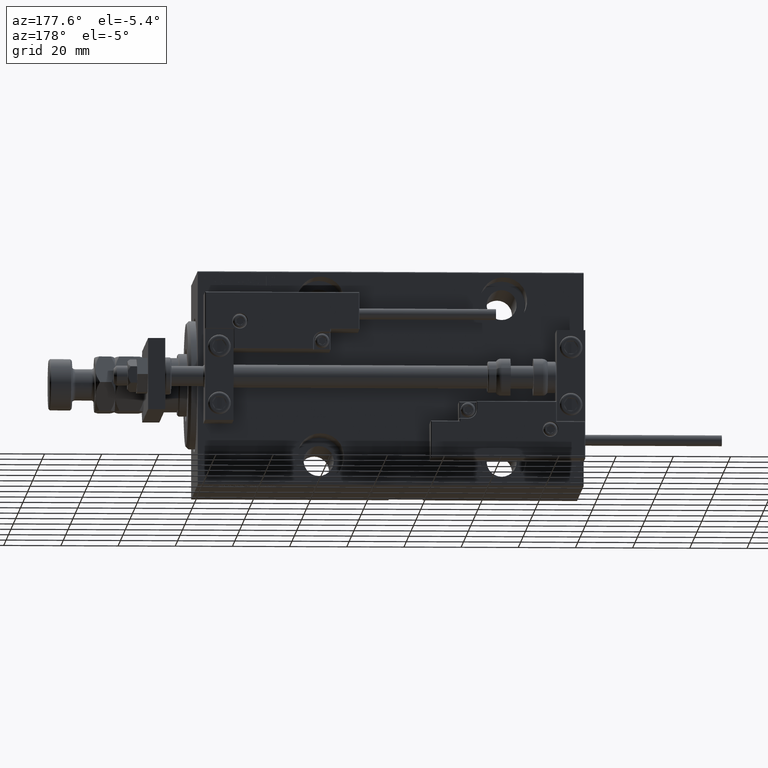
[diagram: clean part render]
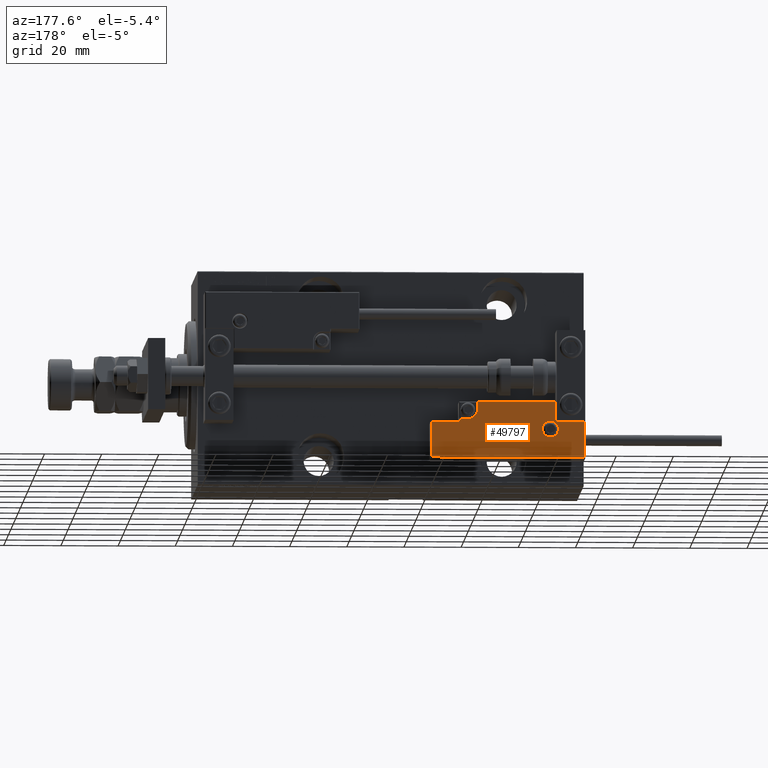
[diagram: same view with one face highlighted and labeled with its STEP entity id]
A machine part, auxiliary view. The second image highlights one B-rep face of the part: STEP entity #49797.
In plain terms, the highlighted planar face has unit normal (-0, 1, 0).
Its self-contained STEP definition (entity closure, byte-faithful):
#365 = ORIENTED_EDGE ( 'NONE', *, *, #28332, .T. ) ;
#688 = LINE ( 'NONE', #16537, #7807 ) ;
#1415 = VERTEX_POINT ( 'NONE', #22199 ) ;
#1532 = CARTESIAN_POINT ( 'NONE',  ( 26.70000000000006324, 7.300000000000007816, 14.00000000000000000 ) ) ;
#1819 = CIRCLE ( 'NONE', #24242, 2.800000000000000266 ) ;
#2932 = DIRECTION ( 'NONE',  ( 1.000000000000000000, -1.734723475976796001E-16, 0.000000000000000000 ) ) ;
#3218 = DIRECTION ( 'NONE',  ( 0.000000000000000000, -0.000000000000000000, -1.000000000000000000 ) ) ;
#3383 = DIRECTION ( 'NONE',  ( -0.000000000000000000, 1.000000000000000000, -0.000000000000000000 ) ) ;
#3527 = CIRCLE ( 'NONE', #42581, 3.299999999999997158 ) ;
#3640 = CARTESIAN_POINT ( 'NONE',  ( -26.69999999999993534, 19.70000000000002061, 14.00000000000000000 ) ) ;
#4215 = DIRECTION ( 'NONE',  ( -0.000000000000000000, 0.000000000000000000, 1.000000000000000000 ) ) ;
#7038 = ORIENTED_EDGE ( 'NONE', *, *, #10495, .T. ) ;
#7807 = VECTOR ( 'NONE', #29541, 1000.000000000000000 ) ;
#8621 = CARTESIAN_POINT ( 'NONE',  ( 0.000000000000000000, 0.000000000000000000, 14.00000000000000000 ) ) ;
#9066 = VERTEX_POINT ( 'NONE', #44099 ) ;
#10090 = VECTOR ( 'NONE', #2932, 1000.000000000000000 ) ;
#10129 = VERTEX_POINT ( 'NONE', #19850 ) ;
#10495 = EDGE_CURVE ( 'NONE', #12157, #18981, #46865, .T. ) ;
#10637 = VERTEX_POINT ( 'NONE', #24840 ) ;
#11281 = CARTESIAN_POINT ( 'NONE',  ( 17.00000000000000000, 6.300000000000003375, 14.00000000000000000 ) ) ;
#12157 = VERTEX_POINT ( 'NONE', #47923 ) ;
#12457 = AXIS2_PLACEMENT_3D ( 'NONE', #31638, #47518, #32645 ) ;
#12661 = VERTEX_POINT ( 'NONE', #21530 ) ;
#13503 = CARTESIAN_POINT ( 'NONE',  ( -16.69999999999999218, 3.252606517456513302E-15, 14.00000000000000000 ) ) ;
#13658 = AXIS2_PLACEMENT_3D ( 'NONE', #8621, #4215, #31532 ) ;
#14174 = DIRECTION ( 'NONE',  ( -8.006416042969869188E-16, -1.000000000000000000, 0.000000000000000000 ) ) ;
#14877 = CARTESIAN_POINT ( 'NONE',  ( 16.69999999999999929, 6.300000000000003375, 14.00000000000000000 ) ) ;
#15370 = CARTESIAN_POINT ( 'NONE',  ( 11.00000000000000000, 0.3000000000000032085, 14.00000000000000000 ) ) ;
#15411 = LINE ( 'NONE', #20338, #20321 ) ;
#15864 = ORIENTED_EDGE ( 'NONE', *, *, #29902, .T. ) ;
#15967 = DIRECTION ( 'NONE',  ( 0.000000000000000000, -0.000000000000000000, -1.000000000000000000 ) ) ;
#16537 = CARTESIAN_POINT ( 'NONE',  ( 26.70000000000006324, 20.00000000000001776, 14.00000000000000000 ) ) ;
#17019 = VECTOR ( 'NONE', #31247, 1000.000000000000000 ) ;
#17387 = EDGE_CURVE ( 'NONE', #42183, #20395, #45524, .T. ) ;
#18347 = LINE ( 'NONE', #21984, #20140 ) ;
#18981 = VERTEX_POINT ( 'NONE', #46704 ) ;
#19576 = CARTESIAN_POINT ( 'NONE',  ( -11.99999999999994849, 9.800000000000004263, 14.00000000000000000 ) ) ;
#19850 = CARTESIAN_POINT ( 'NONE',  ( 10.69999999999999929, 3.000000000000003109, 14.00000000000000000 ) ) ;
#20140 = VECTOR ( 'NONE', #14174, 1000.000000000000000 ) ;
#20152 = EDGE_LOOP ( 'NONE', ( #47547, #15864 ) ) ;
#20321 = VECTOR ( 'NONE', #35699, 1000.000000000000000 ) ;
#20338 = CARTESIAN_POINT ( 'NONE',  ( -26.99999999999993605, 19.70000000000002061, 14.00000000000000000 ) ) ;
#20395 = VERTEX_POINT ( 'NONE', #50919 ) ;
#21530 = CARTESIAN_POINT ( 'NONE',  ( -17.59999999999994813, 9.800000000000004263, 14.00000000000000000 ) ) ;
#21733 = CARTESIAN_POINT ( 'NONE',  ( 13.99999999999999822, 3.000000000000002665, 14.00000000000000000 ) ) ;
#21984 = CARTESIAN_POINT ( 'NONE',  ( -26.69999999999994600, 7.000000000000005329, 14.00000000000000000 ) ) ;
#22199 = CARTESIAN_POINT ( 'NONE',  ( 26.70000000000006324, 19.70000000000001705, 14.00000000000000000 ) ) ;
#22327 = LINE ( 'NONE', #25721, #27640 ) ;
#24115 = CIRCLE ( 'NONE', #12457, 2.800000000000000266 ) ;
#24242 = AXIS2_PLACEMENT_3D ( 'NONE', #27688, #15967, #43577 ) ;
#24840 = CARTESIAN_POINT ( 'NONE',  ( -26.69999999999994600, 7.300000000000005151, 14.00000000000000000 ) ) ;
#25721 = CARTESIAN_POINT ( 'NONE',  ( -16.99999999999999289, 7.300000000000003375, 14.00000000000000000 ) ) ;
#25990 = EDGE_LOOP ( 'NONE', ( #365, #7038, #32080, #49524, #51263, #28027, #44684, #37754, #29170, #34188, #32748 ) ) ;
#27640 = VECTOR ( 'NONE', #41596, 1000.000000000000000 ) ;
#27688 = CARTESIAN_POINT ( 'NONE',  ( -14.79999999999994920, 9.800000000000004263, 14.00000000000000000 ) ) ;
#28027 = ORIENTED_EDGE ( 'NONE', *, *, #17387, .T. ) ;
#28135 = FACE_BOUND ( 'NONE', #20152, .T. ) ;
#28332 = EDGE_CURVE ( 'NONE', #9066, #12157, #49166, .T. ) ;
#29170 = ORIENTED_EDGE ( 'NONE', *, *, #49823, .T. ) ;
#29541 = DIRECTION ( 'NONE',  ( 0.000000000000000000, 1.000000000000000000, -0.000000000000000000 ) ) ;
#29901 = CARTESIAN_POINT ( 'NONE',  ( 16.69999999999999929, 7.000000000000009770, 14.00000000000000000 ) ) ;
#29902 = EDGE_CURVE ( 'NONE', #12661, #43267, #24115, .T. ) ;
#30469 = EDGE_CURVE ( 'NONE', #18981, #10129, #51248, .T. ) ;
#30949 = CARTESIAN_POINT ( 'NONE',  ( 10.69999999999999929, 3.000000000000003109, 14.00000000000000000 ) ) ;
#31247 = DIRECTION ( 'NONE',  ( 1.000000000000000000, -0.000000000000000000, 0.000000000000000000 ) ) ;
#31532 = DIRECTION ( 'NONE',  ( 1.000000000000000000, 0.000000000000000000, 0.000000000000000000 ) ) ;
#31638 = CARTESIAN_POINT ( 'NONE',  ( -14.79999999999994920, 9.800000000000004263, 14.00000000000000000 ) ) ;
#31645 = CARTESIAN_POINT ( 'NONE',  ( 13.99999999999999822, 6.300000000000001599, 14.00000000000000000 ) ) ;
#32080 = ORIENTED_EDGE ( 'NONE', *, *, #30469, .T. ) ;
#32645 = DIRECTION ( 'NONE',  ( 1.000000000000000000, 0.000000000000000000, 0.000000000000000000 ) ) ;
#32748 = ORIENTED_EDGE ( 'NONE', *, *, #36077, .T. ) ;
#32782 = DIRECTION ( 'NONE',  ( 9.912705577010318647E-16, 1.000000000000000000, 0.000000000000000000 ) ) ;
#33754 = VERTEX_POINT ( 'NONE', #3640 ) ;
#34188 = ORIENTED_EDGE ( 'NONE', *, *, #44077, .T. ) ;
#34682 = EDGE_CURVE ( 'NONE', #10129, #42456, #3527, .T. ) ;
#34941 = DIRECTION ( 'NONE',  ( 1.000000000000000000, 0.000000000000000000, 0.000000000000000000 ) ) ;
#35699 = DIRECTION ( 'NONE',  ( -1.000000000000000000, 6.424901762877063495E-17, -0.000000000000000000 ) ) ;
#36077 = EDGE_CURVE ( 'NONE', #10637, #9066, #22327, .T. ) ;
#36549 = VECTOR ( 'NONE', #32782, 1000.000000000000000 ) ;
#37754 = ORIENTED_EDGE ( 'NONE', *, *, #47125, .T. ) ;
#38568 = LINE ( 'NONE', #50795, #10090 ) ;
#38881 = LINE ( 'NONE', #11281, #39984 ) ;
#39106 = VECTOR ( 'NONE', #3383, 1000.000000000000000 ) ;
#39984 = VECTOR ( 'NONE', #45889, 1000.000000000000000 ) ;
#40961 = EDGE_CURVE ( 'NONE', #42456, #42183, #38881, .T. ) ;
#41596 = DIRECTION ( 'NONE',  ( 1.000000000000000000, -1.734723475976815230E-16, 0.000000000000000000 ) ) ;
#41606 = DIRECTION ( 'NONE',  ( 0.000000000000000000, -1.000000000000000000, 0.000000000000000000 ) ) ;
#42183 = VERTEX_POINT ( 'NONE', #14877 ) ;
#42184 = EDGE_CURVE ( 'NONE', #20395, #51115, #38568, .T. ) ;
#42456 = VERTEX_POINT ( 'NONE', #31645 ) ;
#42581 = AXIS2_PLACEMENT_3D ( 'NONE', #21733, #3218, #34941 ) ;
#42901 = EDGE_CURVE ( 'NONE', #43267, #12661, #1819, .T. ) ;
#43267 = VERTEX_POINT ( 'NONE', #19576 ) ;
#43577 = DIRECTION ( 'NONE',  ( 1.000000000000000000, 0.000000000000000000, 0.000000000000000000 ) ) ;
#43772 = PLANE ( 'NONE',  #13658 ) ;
#44077 = EDGE_CURVE ( 'NONE', #33754, #10637, #18347, .T. ) ;
#44099 = CARTESIAN_POINT ( 'NONE',  ( -16.69999999999999218, 7.300000000000003375, 14.00000000000000000 ) ) ;
#44684 = ORIENTED_EDGE ( 'NONE', *, *, #42184, .T. ) ;
#44842 = VECTOR ( 'NONE', #41606, 1000.000000000000000 ) ;
#45524 = LINE ( 'NONE', #29901, #36549 ) ;
#45889 = DIRECTION ( 'NONE',  ( 1.000000000000000000, 5.782411586589357639E-16, -0.000000000000000000 ) ) ;
#46704 = CARTESIAN_POINT ( 'NONE',  ( 10.69999999999999929, 0.3000000000000032085, 14.00000000000000000 ) ) ;
#46865 = LINE ( 'NONE', #15370, #17019 ) ;
#47125 = EDGE_CURVE ( 'NONE', #51115, #1415, #688, .T. ) ;
#47518 = DIRECTION ( 'NONE',  ( 0.000000000000000000, -0.000000000000000000, -1.000000000000000000 ) ) ;
#47547 = ORIENTED_EDGE ( 'NONE', *, *, #42901, .T. ) ;
#47923 = CARTESIAN_POINT ( 'NONE',  ( -16.69999999999999218, 0.3000000000000032085, 14.00000000000000000 ) ) ;
#49166 = LINE ( 'NONE', #13503, #44842 ) ;
#49524 = ORIENTED_EDGE ( 'NONE', *, *, #34682, .T. ) ;
#49797 = ADVANCED_FACE ( 'NONE', ( #28135, #51069 ), #43772, .T. ) ;
#49823 = EDGE_CURVE ( 'NONE', #1415, #33754, #15411, .T. ) ;
#50795 = CARTESIAN_POINT ( 'NONE',  ( 27.00000000000006395, 7.300000000000007816, 14.00000000000000000 ) ) ;
#50919 = CARTESIAN_POINT ( 'NONE',  ( 16.69999999999999929, 7.300000000000009592, 14.00000000000000000 ) ) ;
#51069 = FACE_OUTER_BOUND ( 'NONE', #25990, .T. ) ;
#51115 = VERTEX_POINT ( 'NONE', #1532 ) ;
#51248 = LINE ( 'NONE', #30949, #39106 ) ;
#51263 = ORIENTED_EDGE ( 'NONE', *, *, #40961, .T. ) ;